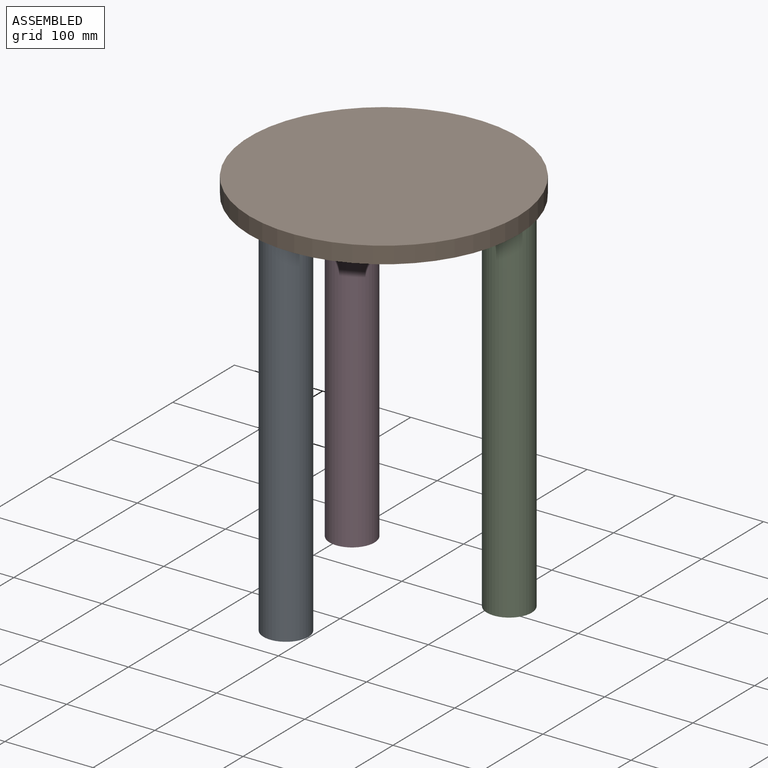
[diagram: assembled view]
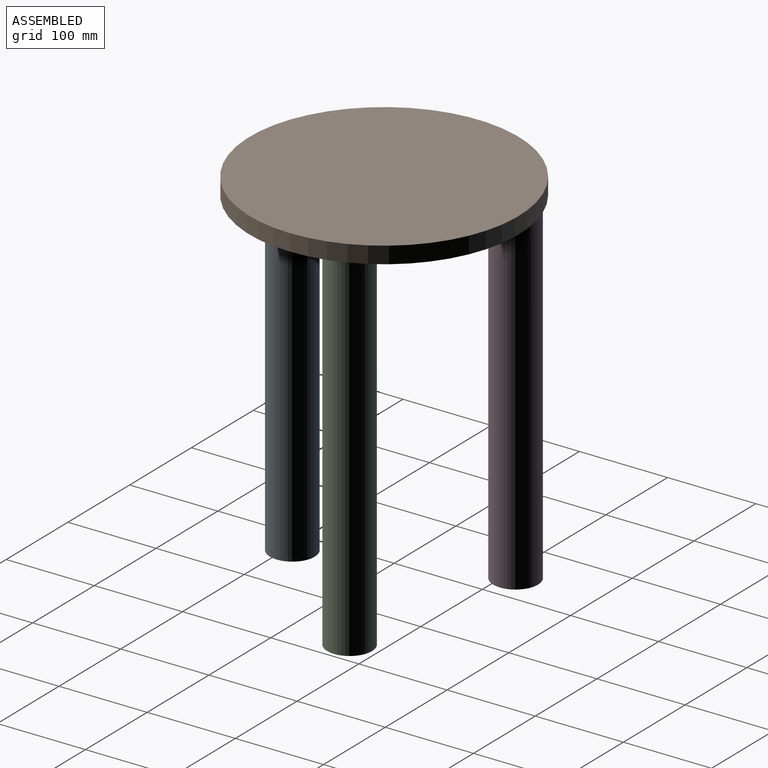
[diagram: assembled view, second angle]
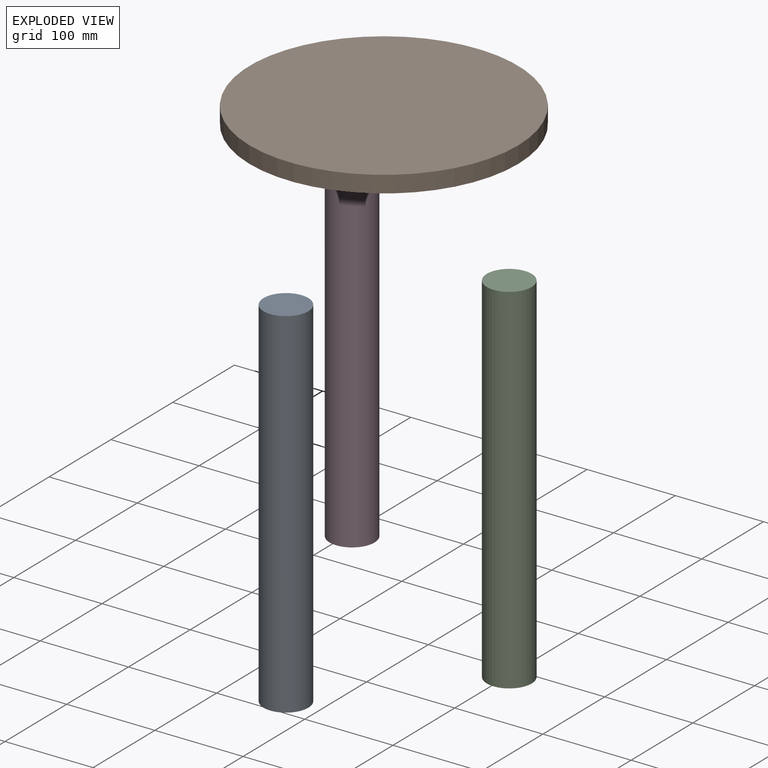
[diagram: exploded view]
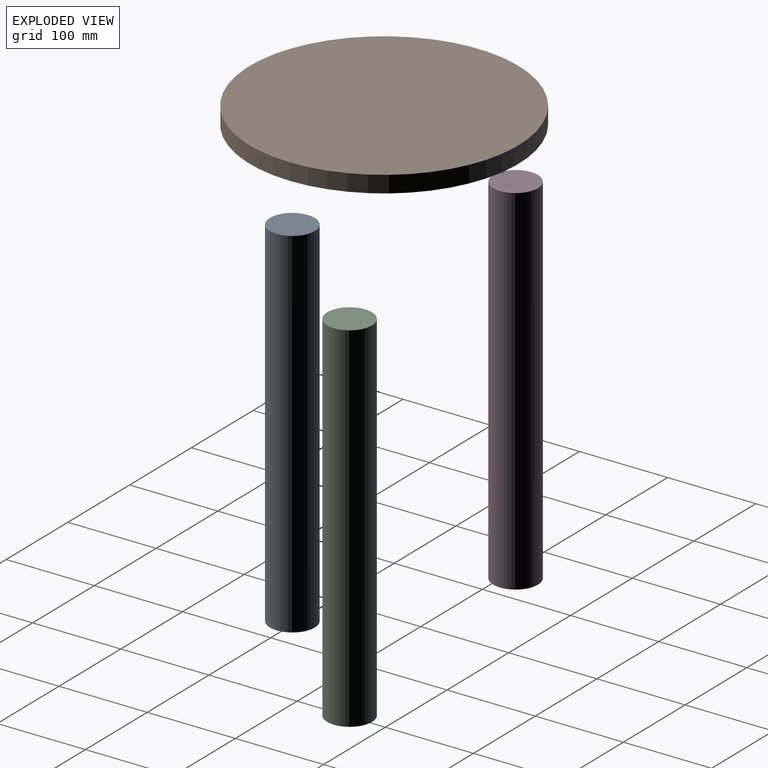
[diagram: exploded view, second angle]
ASSEMBLY  parts=4 mates=3
PART A: 3 faces, bbox 50.8x50.8x406.4 mm
  f0: cylinder r=25.4mm len=406.4mm, axis (0,0,-1), area 64858.6mm2, adj f1,f2
  f1: plane 50.8x50.8mm, normal (0,0,1), area 2026.8mm2, adj f0
  f2: plane 50.8x50.8mm, normal (0,0,-1), area 2026.8mm2, adj f0
PART B: 3 faces, bbox 304.8x304.8x19.1 mm
  f0: cylinder r=152.4mm len=304.8mm, axis (0,0,-1), area 18241.5mm2, adj f1,f2
  f1: plane 304.8x304.8mm, normal (0,0,1), area 72965.9mm2, adj f0
  f2: plane 304.8x304.8mm, normal (0,0,-1), area 72965.9mm2, adj f0
PART C: same geometry as A
PART D: same geometry as A
PLACE A t=(-177.06,-225.91,91.23)mm
PLACE B t=(-111.21,-96.94,497.63)mm
PLACE C t=(-37.65,-63.34,91.23)mm
PLACE D t=(-245.69,-20.78,91.23)mm
MATE planar C.f0 <-> B.f0  axis (0,0,1) through (-86.47,-30.95,497.63)mm
MATE planar B.f0 <-> D.f0  axis (0,0,-1) through (-200.28,-71.53,497.63)mm
MATE planar A.f0 <-> B.f0  axis (0,0,1) through (-225.89,-193.51,497.63)mm
